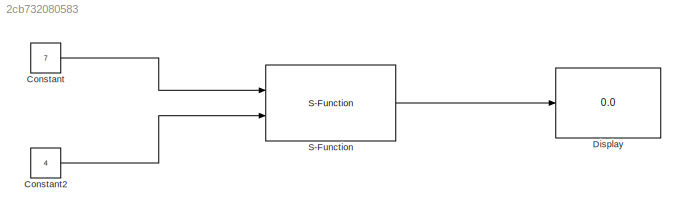
MODEL slx_2cb732080583
KIND model
CONFIG AbsTol = auto
CONFIG EnableMultiTasking = off
CONFIG FixedStep = auto
CONFIG MaxStep = auto
CONFIG MinStep = auto
CONFIG RelTol = 1e-3
CONFIG SampleTimeConstraint = Unconstrained
CONFIG Solver = VariableStepAuto
CONFIG SolverName = VariableStepAuto
CONFIG StartTime = 0.0
CONFIG StopTime = 10.0
BLOCK [Constant] Constant
  Value = 7
BLOCK [Constant] Constant2
  Value = 4
BLOCK [Display] Display
  Decimation = 1
  Ports = [1]
BLOCK [S-Function] S-Function
  EnableBusSupport = off
  FunctionName = muskaan3064
  Ports = [2, 1]
  SFcnIsStateOwnerBlock = off
  SFunctionDeploymentMode = off
LINE Constant2:1 -> S-Function:2
LINE Constant:1 -> S-Function:1
LINE S-Function:1 -> Display:1
